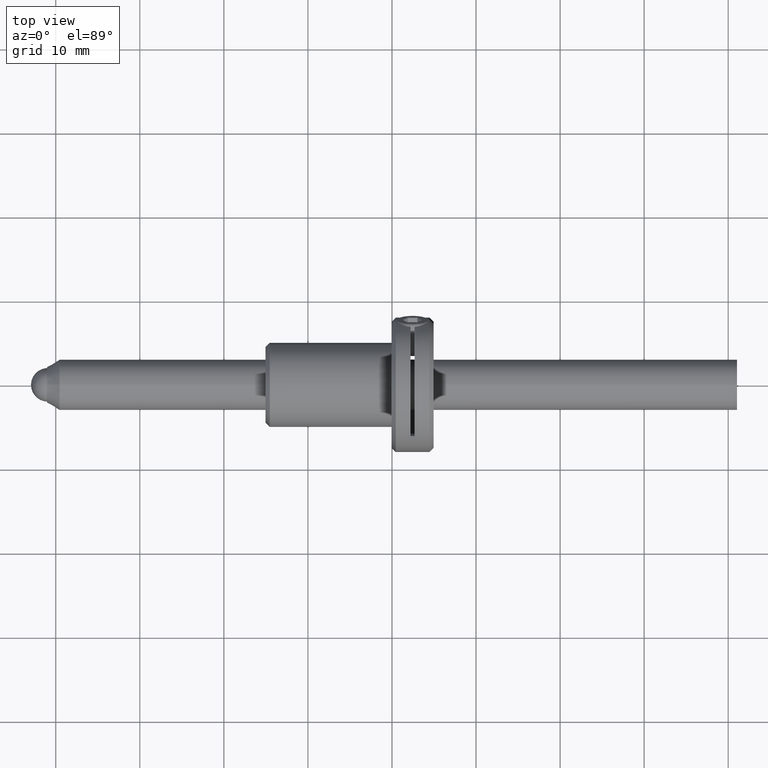
[diagram: clean part render]
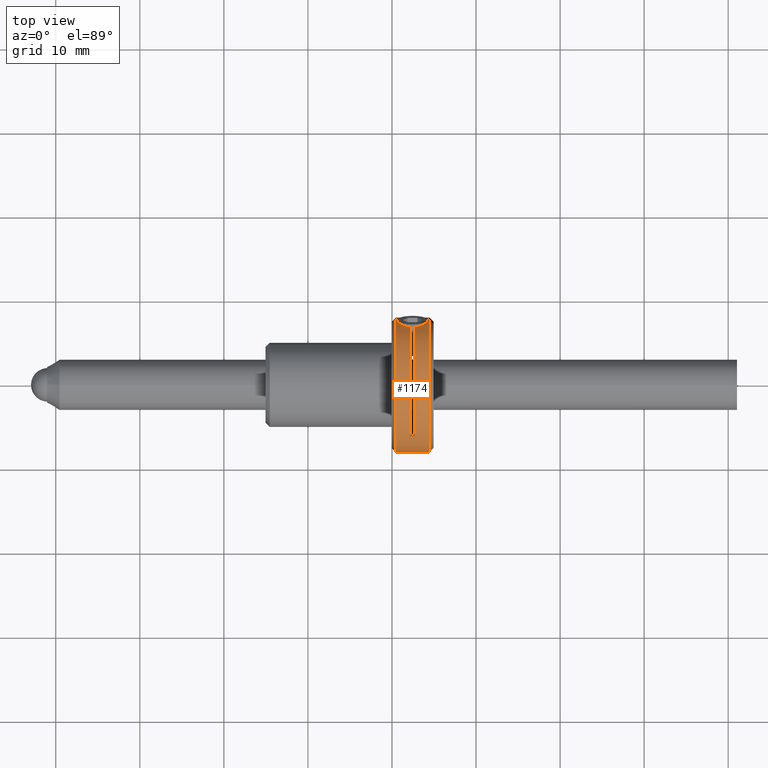
[diagram: same view with one face highlighted and labeled with its STEP entity id]
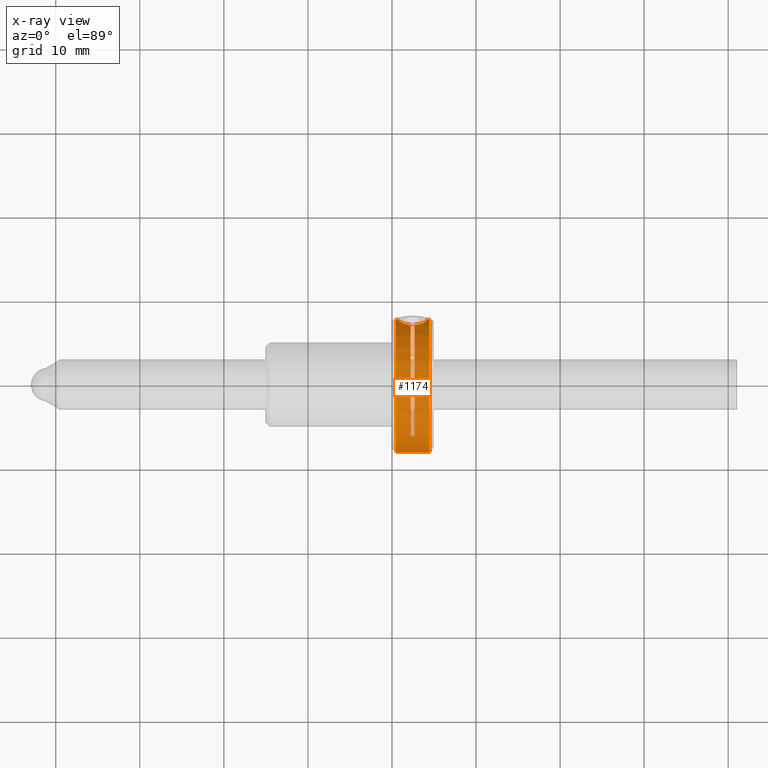
[diagram: x-ray of the same camera — body ghosted, the highlighted face saturated]
A machine part, top view. The second image highlights one B-rep face of the part: STEP entity #1174.
The next image is the same camera in x-ray: the body ghosted, the highlighted face saturated — about 0% of this face is hidden behind the body in this view.
In plain terms, the highlighted cylindrical surface (partial cylindrical patch) has radius 8 mm, axis along (-1, 0, 0).
Its self-contained STEP definition (entity closure, byte-faithful):
#20 = CARTESIAN_POINT ( 'NONE',  ( 3.081223994863760307, 7.097493065968210502, 3.692527170031782102 ) ) ;
#31 = VERTEX_POINT ( 'NONE', #1081 ) ;
#40 = AXIS2_PLACEMENT_3D ( 'NONE', #352, #1106, #195 ) ;
#55 = CARTESIAN_POINT ( 'NONE',  ( 0.9708131093563227010, 7.427931870712662921, 2.976445512477148725 ) ) ;
#60 = CYLINDRICAL_SURFACE ( 'NONE', #1082, 8.000000000000001776 ) ;
#123 = ORIENTED_EDGE ( 'NONE', *, *, #252, .T. ) ;
#132 = CARTESIAN_POINT ( 'NONE',  ( 4.099999999999998757, 7.674052566634745887, 2.260291398144640862 ) ) ;
#145 = CIRCLE ( 'NONE', #914, 8.000000000000001776 ) ;
#171 = VECTOR ( 'NONE', #483, 1000.000000000000000 ) ;
#181 = EDGE_CURVE ( 'NONE', #1000, #884, #905, .T. ) ;
#195 = DIRECTION ( 'NONE',  ( -1.084202172485504187E-16, -0.9592565708293433469, -0.2825364247680801078 ) ) ;
#205 = LINE ( 'NONE', #958, #1015 ) ;
#211 = EDGE_LOOP ( 'NONE', ( #123, #481, #669, #1854, #1797, #596, #409, #1306, #1369, #525 ) ) ;
#227 = CARTESIAN_POINT ( 'NONE',  ( 2.892249846387278556, 7.066293502720832009, 3.750786879241786664 ) ) ;
#233 = CARTESIAN_POINT ( 'NONE',  ( 2.199999999999997957, 7.052080781405081211, 3.777321359447340932 ) ) ;
#247 = CARTESIAN_POINT ( 'NONE',  ( 1.072211583510112698, 7.361257583433513219, 3.135904267062560979 ) ) ;
#252 = EDGE_CURVE ( 'NONE', #782, #1932, #943, .T. ) ;
#260 = EDGE_CURVE ( 'NONE', #1666, #1080, #205, .T. ) ;
#317 = CARTESIAN_POINT ( 'NONE',  ( -32.40644179797200763, 7.674052566634747663, 2.260291398144641306 ) ) ;
#318 = CARTESIAN_POINT ( 'NONE',  ( 4.450000000000000178, 7.674052566634745887, 2.260291398144640862 ) ) ;
#333 = CARTESIAN_POINT ( 'NONE',  ( 4.450000000000000178, -5.426736848533666609E-16, -7.892009290543411720E-16 ) ) ;
#335 = DIRECTION ( 'NONE',  ( 1.000000000000000000, 9.984269357416027329E-17, 2.940735413182461736E-17 ) ) ;
#348 = DIRECTION ( 'NONE',  ( 0.000000000000000000, 0.9592565708293433469, 0.2825364247680801078 ) ) ;
#352 = CARTESIAN_POINT ( 'NONE',  ( 2.199999999999997957, -5.426736848533666609E-16, -7.892009290543411720E-16 ) ) ;
#359 = CARTESIAN_POINT ( 'NONE',  ( 1.818425858103000392, 7.097560840900273504, 3.692398002428468828 ) ) ;
#385 = CARTESIAN_POINT ( 'NONE',  ( 3.821669983389967218, 7.362756547818245956, 3.130005396941046403 ) ) ;
#409 = ORIENTED_EDGE ( 'NONE', *, *, #826, .F. ) ;
#468 = DIRECTION ( 'NONE',  ( -1.084202172485504187E-16, 0.9592565708293433469, 0.2825364247680801078 ) ) ;
#481 = ORIENTED_EDGE ( 'NONE', *, *, #636, .T. ) ;
#483 = DIRECTION ( 'NONE',  ( -1.000000000000000000, 0.000000000000000000, 0.000000000000000000 ) ) ;
#485 = AXIS2_PLACEMENT_3D ( 'NONE', #1716, #335, #468 ) ;
#525 = ORIENTED_EDGE ( 'NONE', *, *, #1607, .F. ) ;
#533 = CARTESIAN_POINT ( 'NONE',  ( 0.7999999999999976019, 7.674052566634745887, 2.260291398144640862 ) ) ;
#573 = DIRECTION ( 'NONE',  ( -1.000000000000000000, 0.000000000000000000, 0.000000000000000000 ) ) ;
#596 = ORIENTED_EDGE ( 'NONE', *, *, #181, .T. ) ;
#605 = DIRECTION ( 'NONE',  ( -1.000000000000000000, 0.000000000000000000, 0.000000000000000000 ) ) ;
#629 = CARTESIAN_POINT ( 'NONE',  ( 2.700000000000003286, -6.185457359366171914, 5.073471913341284001 ) ) ;
#636 = EDGE_CURVE ( 'NONE', #1932, #1024, #1580, .T. ) ;
#649 = EDGE_CURVE ( 'NONE', #1096, #1000, #1704, .T. ) ;
#669 = ORIENTED_EDGE ( 'NONE', *, *, #1669, .F. ) ;
#727 = EDGE_CURVE ( 'NONE', #1080, #1384, #145, .T. ) ;
#775 = CARTESIAN_POINT ( 'NONE',  ( 4.099999999999998757, 7.674052566634745887, 2.260291398144640862 ) ) ;
#782 = VERTEX_POINT ( 'NONE', #1482 ) ;
#815 = DIRECTION ( 'NONE',  ( -1.000000000000000000, 0.000000000000000000, 0.000000000000000000 ) ) ;
#825 = CARTESIAN_POINT ( 'NONE',  ( 4.064168683231833334, 7.555607599233635341, 2.635564719469170925 ) ) ;
#826 = EDGE_CURVE ( 'NONE', #1666, #884, #1002, .T. ) ;
#884 = VERTEX_POINT ( 'NONE', #1527 ) ;
#905 = CIRCLE ( 'NONE', #40, 8.000000000000001776 ) ;
#914 = AXIS2_PLACEMENT_3D ( 'NONE', #1940, #1625, #348 ) ;
#928 = CARTESIAN_POINT ( 'NONE',  ( -32.40644179797200763, -7.674052566634749439, -2.260291398144642194 ) ) ;
#943 = CIRCLE ( 'NONE', #1943, 8.000000000000001776 ) ;
#958 = CARTESIAN_POINT ( 'NONE',  ( -32.40644179797200763, 7.674052566634747663, 2.260291398144641306 ) ) ;
#975 = DIRECTION ( 'NONE',  ( -1.000000000000000000, 0.000000000000000000, 0.000000000000000000 ) ) ;
#984 = CARTESIAN_POINT ( 'NONE',  ( 2.007507893649552955, 7.066311412609484144, 3.750753442324576081 ) ) ;
#995 = CARTESIAN_POINT ( 'NONE',  ( 0.7999999999999977129, 7.618981774530062978, 2.447265588217852450 ) ) ;
#1000 = VERTEX_POINT ( 'NONE', #1830 ) ;
#1001 = DIRECTION ( 'NONE',  ( -1.000000000000000000, 0.000000000000000000, 0.000000000000000000 ) ) ;
#1002 = B_SPLINE_CURVE_WITH_KNOTS ( 'NONE', 3,
 ( #1134, #995, #1746, #55, #247, #1287, #1900, #359, #984, #233 ),
 .UNSPECIFIED., .F., .F.,
 ( 4, 2, 2, 2, 4 ),
 ( 0.005172557741124074807, 0.005756838109633939313, 0.006341118478143804686, 0.006925398846653670060, 0.007509679215163534566 ),
 .UNSPECIFIED. ) ;
#1011 = CARTESIAN_POINT ( 'NONE',  ( 3.920656199516580287, 7.427128871979315150, 2.974033370077036498 ) ) ;
#1015 = VECTOR ( 'NONE', #815, 1000.000000000000000 ) ;
#1024 = VERTEX_POINT ( 'NONE', #132 ) ;
#1046 = VECTOR ( 'NONE', #605, 1000.000000000000000 ) ;
#1069 = B_SPLINE_CURVE_WITH_KNOTS ( 'NONE', 3,
 ( #1092, #227, #20, #1163, #1915, #1771, #385, #1011, #1610, #825, #1463, #775 ),
 .UNSPECIFIED., .F., .F.,
 ( 4, 2, 2, 2, 2, 4 ),
 ( 0.008009074877206617815, 0.008592748836153654007, 0.009176422795100690200, 0.009468259774574208296, 0.009760096754047726392, 0.01034377071299476432 ),
 .UNSPECIFIED. ) ;
#1080 = VERTEX_POINT ( 'NONE', #1091 ) ;
#1081 = CARTESIAN_POINT ( 'NONE',  ( 2.699999999999998401, 7.052080781405081211, 3.777321359447340487 ) ) ;
#1082 = AXIS2_PLACEMENT_3D ( 'NONE', #1905, #1001, #1598 ) ;
#1088 = CARTESIAN_POINT ( 'NONE',  ( -32.40644179797200763, -6.185457359366171914, 5.073471913341285777 ) ) ;
#1091 = CARTESIAN_POINT ( 'NONE',  ( 0.4500000000000033418, 7.674052566634745887, 2.260291398144640862 ) ) ;
#1092 = CARTESIAN_POINT ( 'NONE',  ( 2.699999999999998401, 7.052080781405081211, 3.777321359447340487 ) ) ;
#1096 = VERTEX_POINT ( 'NONE', #629 ) ;
#1106 = DIRECTION ( 'NONE',  ( -1.000000000000000000, 9.984269357416027329E-17, 2.940735413182461736E-17 ) ) ;
#1134 = CARTESIAN_POINT ( 'NONE',  ( 0.7999999999999976019, 7.674052566634745887, 2.260291398144640862 ) ) ;
#1141 = FACE_OUTER_BOUND ( 'NONE', #211, .T. ) ;
#1163 = CARTESIAN_POINT ( 'NONE',  ( 3.420468725566801815, 7.183821767860467666, 3.521628817820504409 ) ) ;
#1174 = ADVANCED_FACE ( 'NONE', ( #1141 ), #60, .T. ) ;
#1287 = CARTESIAN_POINT ( 'NONE',  ( 1.324841758793658286, 7.239930772834535233, 3.406671570081580391 ) ) ;
#1306 = ORIENTED_EDGE ( 'NONE', *, *, #260, .T. ) ;
#1369 = ORIENTED_EDGE ( 'NONE', *, *, #727, .T. ) ;
#1377 = CIRCLE ( 'NONE', #485, 8.000000000000001776 ) ;
#1384 = VERTEX_POINT ( 'NONE', #1471 ) ;
#1463 = CARTESIAN_POINT ( 'NONE',  ( 4.099999999999998757, 7.618280107289064240, 2.449647861271740723 ) ) ;
#1471 = CARTESIAN_POINT ( 'NONE',  ( 0.4500000000000033418, -7.674052566634747663, -2.260291398144641750 ) ) ;
#1482 = CARTESIAN_POINT ( 'NONE',  ( 4.450000000000000178, -7.674052566634749439, -2.260291398144642194 ) ) ;
#1527 = CARTESIAN_POINT ( 'NONE',  ( 2.199999999999997957, 7.052080781405081211, 3.777321359447340932 ) ) ;
#1535 = VECTOR ( 'NONE', #573, 1000.000000000000000 ) ;
#1580 = LINE ( 'NONE', #317, #1046 ) ;
#1595 = DIRECTION ( 'NONE',  ( 0.000000000000000000, -0.9592565708293433469, -0.2825364247680801078 ) ) ;
#1598 = DIRECTION ( 'NONE',  ( 0.000000000000000000, -0.9592565708293433469, -0.2825364247680801078 ) ) ;
#1607 = EDGE_CURVE ( 'NONE', #782, #1384, #1966, .T. ) ;
#1610 = CARTESIAN_POINT ( 'NONE',  ( 3.962349213983716645, 7.459419021066996613, 2.892303539425092218 ) ) ;
#1625 = DIRECTION ( 'NONE',  ( 1.000000000000000000, 0.000000000000000000, 0.000000000000000000 ) ) ;
#1666 = VERTEX_POINT ( 'NONE', #533 ) ;
#1669 = EDGE_CURVE ( 'NONE', #31, #1024, #1069, .T. ) ;
#1704 = LINE ( 'NONE', #1088, #171 ) ;
#1716 = CARTESIAN_POINT ( 'NONE',  ( 2.699999999999998401, -5.426736848533666609E-16, -7.892009290543411720E-16 ) ) ;
#1723 = EDGE_CURVE ( 'NONE', #31, #1096, #1377, .T. ) ;
#1746 = CARTESIAN_POINT ( 'NONE',  ( 0.8354764457575402092, 7.556102970285139442, 2.634142681621929771 ) ) ;
#1771 = CARTESIAN_POINT ( 'NONE',  ( 3.764116477078811585, 7.330652631101112426, 3.204220899871464745 ) ) ;
#1797 = ORIENTED_EDGE ( 'NONE', *, *, #649, .T. ) ;
#1830 = CARTESIAN_POINT ( 'NONE',  ( 2.199999999999999734, -6.185457359366171914, 5.073471913341284001 ) ) ;
#1854 = ORIENTED_EDGE ( 'NONE', *, *, #1723, .T. ) ;
#1900 = CARTESIAN_POINT ( 'NONE',  ( 1.479213468811085619, 7.183924011034497958, 3.521421403680724982 ) ) ;
#1905 = CARTESIAN_POINT ( 'NONE',  ( -32.40644179797200763, -5.426736848533666609E-16, -7.892009290543411720E-16 ) ) ;
#1915 = CARTESIAN_POINT ( 'NONE',  ( 3.574489448854308637, 7.239662353467847034, 3.407240422974494365 ) ) ;
#1932 = VERTEX_POINT ( 'NONE', #318 ) ;
#1940 = CARTESIAN_POINT ( 'NONE',  ( 0.4500000000000033418, -5.426736848533666609E-16, -7.892009290543411720E-16 ) ) ;
#1943 = AXIS2_PLACEMENT_3D ( 'NONE', #333, #975, #1595 ) ;
#1966 = LINE ( 'NONE', #928, #1535 ) ;